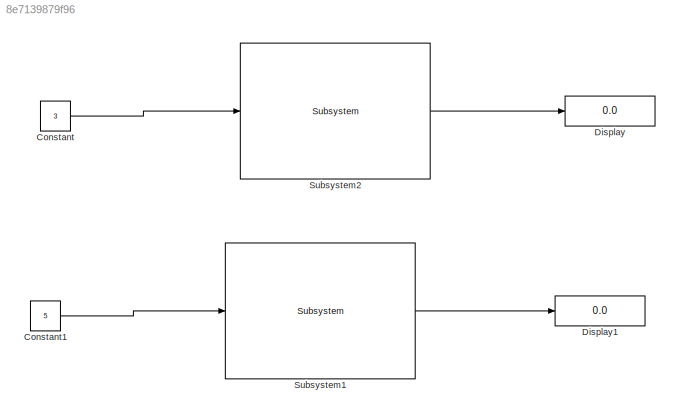
MODEL slx_8e7139879f96
KIND model
CONFIG AbsTol = auto
CONFIG EnableMultiTasking = off
CONFIG FixedStep = auto
CONFIG MaxStep = auto
CONFIG MinStep = auto
CONFIG RelTol = 1e-3
CONFIG SampleTimeConstraint = Unconstrained
CONFIG Solver = VariableStepAuto
CONFIG SolverName = VariableStepAuto
CONFIG StartTime = 0.0
CONFIG StopTime = 10.0
BLOCK [Constant] Constant
  Value = 3
BLOCK [Constant] Constant1
  Value = 5
BLOCK [Display] Display
  Decimation = 1
  Ports = [1]
BLOCK [Display] Display1
  Decimation = 1
  Ports = [1]
BLOCK [Reference] Subsystem1  REF=TestLibrary/Subsystem
  Ports = [1, 1]
  SourceBlock = TestLibrary/Subsystem
  SourceType = SubSystem
BLOCK [Reference] Subsystem2  REF=TestLibrary/Subsystem
  Ports = [1, 1]
  SourceBlock = TestLibrary/Subsystem
  SourceType = SubSystem
LINE Constant1:1 -> Subsystem1:1
LINE Constant:1 -> Subsystem2:1
LINE Subsystem1:1 -> Display1:1
LINE Subsystem2:1 -> Display:1
